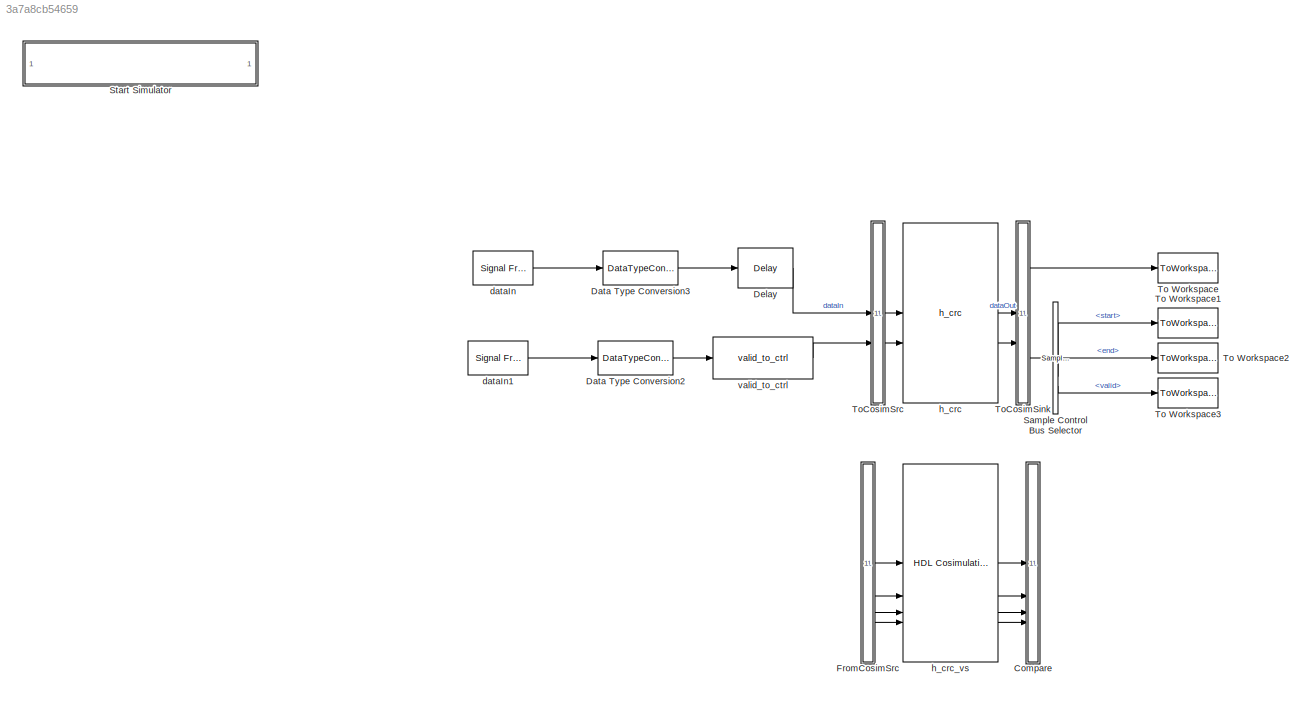
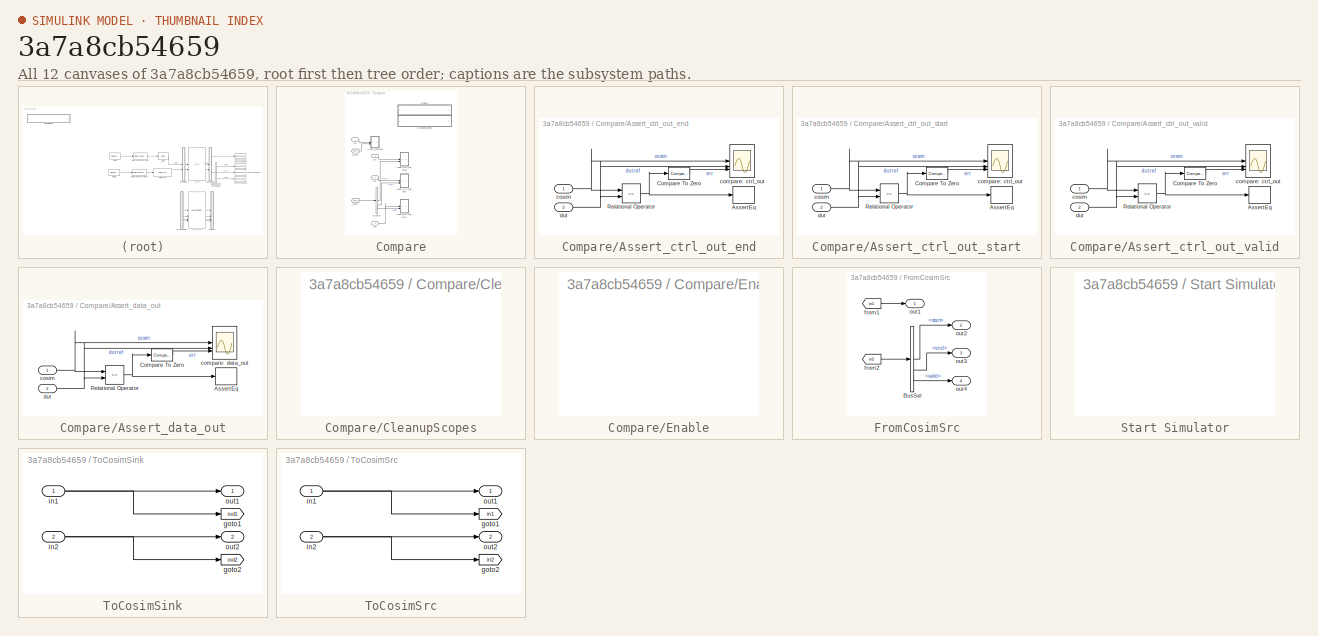
[diagram: thumbnail index - all 12 canvases of the model, root first then tree order]
MODEL slx_3a7a8cb54659
KIND model
CONFIG AbsTol = auto
CONFIG EnableMultiTasking = off
CONFIG FixedStep = auto
CONFIG MaxStep = auto
CONFIG MinStep = auto
CONFIG RelTol = 1e-3
CONFIG SampleTimeConstraint = Unconstrained
CONFIG SolverName = VariableStepAuto
CONFIG StartTime = 0.0
CONFIG StopTime = 10.0
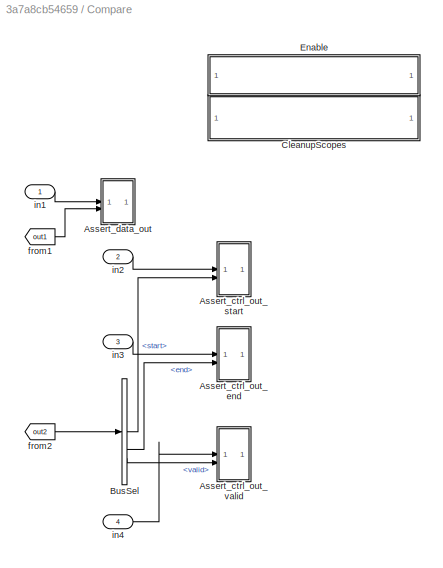
BLOCK [SubSystem] Compare
BLOCK [SubSystem] Compare/Assert_ctrl_out_end
  LibrarySourceBlock = hdlmdlgenlib/AssertEq
BLOCK [Assertion] Compare/Assert_ctrl_out_end/AssertEq
BLOCK [Reference] Compare/Assert_ctrl_out_end/Compare To Zero  REF=simulink/Logic and Bit
Operations/Compare
To Zero
  SourceBlock = simulink/Logic and Bit\nOperations/Compare\nTo Zero
  SourceType = Compare To Zero
BLOCK [RelationalOperator] Compare/Assert_ctrl_out_end/Relational Operator
  InputSameDT = off
  Operator = ==
  OutDataTypeStr = boolean
BLOCK [Scope] Compare/Assert_ctrl_out_end/compare: ctrl_out
  Floating = off
  NumInputPorts = 3
  ScopeSpecificationString = Simulink.scopes.TimeScopeBlockCfg('CurrentConfiguration', extmgr.ConfigurationSet(extmgr.Configuration('Core','General UI',true,'MessageLogAutoOpenMode','for warn/fail messages','ShowCloseAll',true,'ShowBringAllForward',true),extmgr.Configuration('Core','Source UI',true,'PlaybackToolbar',true),extmgr.Configuration('Sources','WiredSimulink',true,'PointsPerSignal',50000,'DataLoggingDecimation','1','...<+3578ch>
BLOCK [Inport] Compare/Assert_ctrl_out_end/cosim
BLOCK [Inport] Compare/Assert_ctrl_out_end/dut
  Port = 2
BLOCK [SubSystem] Compare/Assert_ctrl_out_start
  LibrarySourceBlock = hdlmdlgenlib/AssertEq
BLOCK [Assertion] Compare/Assert_ctrl_out_start/AssertEq
BLOCK [Reference] Compare/Assert_ctrl_out_start/Compare To Zero  REF=simulink/Logic and Bit
Operations/Compare
To Zero
  SourceBlock = simulink/Logic and Bit\nOperations/Compare\nTo Zero
  SourceType = Compare To Zero
BLOCK [RelationalOperator] Compare/Assert_ctrl_out_start/Relational Operator
  InputSameDT = off
  Operator = ==
  OutDataTypeStr = boolean
BLOCK [Scope] Compare/Assert_ctrl_out_start/compare: ctrl_out
  Floating = off
  NumInputPorts = 3
  ScopeSpecificationString = Simulink.scopes.TimeScopeBlockCfg('CurrentConfiguration', extmgr.ConfigurationSet(extmgr.Configuration('Core','General UI',true,'MessageLogAutoOpenMode','for warn/fail messages','ShowCloseAll',true,'ShowBringAllForward',true),extmgr.Configuration('Core','Source UI',true,'PlaybackToolbar',true),extmgr.Configuration('Sources','WiredSimulink',true,'PointsPerSignal',50000,'DataLoggingDecimation','1','...<+3577ch>  <repeated x3 — deduplicated; at blocks: compare: ctrl_out, compare: data_out>
BLOCK [Inport] Compare/Assert_ctrl_out_start/cosim
BLOCK [Inport] Compare/Assert_ctrl_out_start/dut
  Port = 2
BLOCK [SubSystem] Compare/Assert_ctrl_out_valid
  LibrarySourceBlock = hdlmdlgenlib/AssertEq
BLOCK [Assertion] Compare/Assert_ctrl_out_valid/AssertEq
BLOCK [Reference] Compare/Assert_ctrl_out_valid/Compare To Zero  REF=simulink/Logic and Bit
Operations/Compare
To Zero
  SourceBlock = simulink/Logic and Bit\nOperations/Compare\nTo Zero
  SourceType = Compare To Zero
BLOCK [RelationalOperator] Compare/Assert_ctrl_out_valid/Relational Operator
  InputSameDT = off
  Operator = ==
  OutDataTypeStr = boolean
BLOCK [Scope] Compare/Assert_ctrl_out_valid/compare: ctrl_out
  Floating = off
  NumInputPorts = 3
BLOCK [Inport] Compare/Assert_ctrl_out_valid/cosim
BLOCK [Inport] Compare/Assert_ctrl_out_valid/dut
  Port = 2
BLOCK [SubSystem] Compare/Assert_data_out
  LibrarySourceBlock = hdlmdlgenlib/AssertEq
BLOCK [Assertion] Compare/Assert_data_out/AssertEq
BLOCK [Reference] Compare/Assert_data_out/Compare To Zero  REF=simulink/Logic and Bit
Operations/Compare
To Zero
  SourceBlock = simulink/Logic and Bit\nOperations/Compare\nTo Zero
  SourceType = Compare To Zero
BLOCK [RelationalOperator] Compare/Assert_data_out/Relational Operator
  InputSameDT = off
  Operator = ==
  OutDataTypeStr = boolean
BLOCK [Scope] Compare/Assert_data_out/compare: data_out
  Floating = off
  NumInputPorts = 3
BLOCK [Inport] Compare/Assert_data_out/cosim
BLOCK [Inport] Compare/Assert_data_out/dut
  Port = 2
BLOCK [BusSelector] Compare/BusSel
  OutputSignals = start,end,valid
BLOCK [SubSystem] Compare/CleanupScopes
  OpenFcn = blkName = gcb; %self block\nidx = regexp(blkName, '/CleanupScopes$', 'once');\nblkParent = blkName(1:idx-1);\nblks=find_system(blkParent, 'LookUnderMasks', 'all','blocktype', 'Scope');\nfor itr = 1:length(blks)\n	 hScopeCfg = get_param(blks{itr},'ScopeConfiguration');\n	 hScopeCfg.Visible = ~ hScopeCfg.Visible;\nend\ndrawnow;
BLOCK [SubSystem] Compare/Enable
  OpenFcn = blkName = gcb;\nidx = regexp(blkName, '/Enable$', 'once');\nblkParent = blkName(1:idx-1);\nblks=find_system(blkParent, 'LookUnderMasks', 'all','blocktype', 'Assertion');\ne = get_param(blks{1}, 'Enabled');\nif strcmp(e, 'on'), f= 'off';, else, f = 'on';, end\nfor ii=1:length(blks), set_param(blks{ii}, 'Enabled', f);, end\nset_param(gcb, 'MaskDisplay',['fprintf(message(''hdlcoder:cosim:vnl_dblclick_assert...<+47ch>
BLOCK [From] Compare/from1
  GotoTag = out1
  TagVisibility = global
BLOCK [From] Compare/from2
  GotoTag = out2
  TagVisibility = global
BLOCK [Inport] Compare/in1
BLOCK [Inport] Compare/in2
  Port = 2
BLOCK [Inport] Compare/in3
  Port = 3
BLOCK [Inport] Compare/in4
  Port = 4
BLOCK [DataTypeConversion] Data Type Conversion2
  OutDataTypeStr = boolean
  RndMeth = Floor
  SaturateOnIntegerOverflow = off
BLOCK [DataTypeConversion] Data Type Conversion3
  OutDataTypeStr = boolean
  RndMeth = Floor
  SaturateOnIntegerOverflow = off
BLOCK [Delay] Delay
  DelayLength = 1
  InitialCondition = 0
  InputPortMap = u0
  UseCircularBuffer = on
  UserDataPersistent = on
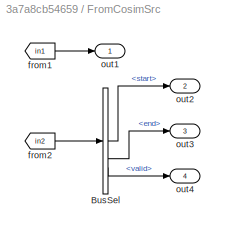
BLOCK [SubSystem] FromCosimSrc
BLOCK [BusSelector] FromCosimSrc/BusSel
  OutputSignals = start,end,valid
BLOCK [From] FromCosimSrc/from1
  GotoTag = in1
  TagVisibility = global
BLOCK [From] FromCosimSrc/from2
  GotoTag = in2
  TagVisibility = global
BLOCK [Outport] FromCosimSrc/out1
BLOCK [Outport] FromCosimSrc/out2
  Port = 2
BLOCK [Outport] FromCosimSrc/out3
  Port = 3
BLOCK [Outport] FromCosimSrc/out4
  Port = 4
BLOCK [Reference] Sample Control Bus Selector  REF=whdlutilities/Sample Control
Bus Selector
  SourceBlock = whdlutilities/Sample Control\nBus Selector
BLOCK [SubSystem] Start Simulator
  OpenFcn = cosimDirName = pwd;\ncd 'hdl_prj/hdlsrc/HDLHeaderCRC';\n[s,r] = system('vivado -mode batch -source gm_HDLHeaderCRC_vs.tcl','-echo');\ncd (cosimDirName);\nclear cosimDirName;\nif s\n   error('Failed to create Vivado HDL design DLL using script gm_HDLHeaderCRC_vs.tcl.');\nend
BLOCK [ToWorkspace] To Workspace
  MaxDataPoints = inf
  SampleTime = 1/fs
  Save2DSignal = 2-D array (concatenate along first dimension)
  VariableName = dataOut
BLOCK [ToWorkspace] To Workspace1
  MaxDataPoints = inf
  SampleTime = 1/fs
  Save2DSignal = 2-D array (concatenate along first dimension)
  VariableName = startOut
BLOCK [ToWorkspace] To Workspace2
  MaxDataPoints = inf
  SampleTime = 1/fs
  Save2DSignal = 2-D array (concatenate along first dimension)
  VariableName = endOut
BLOCK [ToWorkspace] To Workspace3
  MaxDataPoints = inf
  SampleTime = 1/fs
  Save2DSignal = 2-D array (concatenate along first dimension)
  VariableName = validOut
BLOCK [SubSystem] ToCosimSink
BLOCK [Goto] ToCosimSink/goto1
  GotoTag = out1
  TagVisibility = global
BLOCK [Goto] ToCosimSink/goto2
  GotoTag = out2
  TagVisibility = global
BLOCK [Inport] ToCosimSink/in1
BLOCK [Inport] ToCosimSink/in2
  Port = 2
BLOCK [Outport] ToCosimSink/out1
BLOCK [Outport] ToCosimSink/out2
  Port = 2
BLOCK [SubSystem] ToCosimSrc
BLOCK [Goto] ToCosimSrc/goto1
  GotoTag = in1
  TagVisibility = global
BLOCK [Goto] ToCosimSrc/goto2
  GotoTag = in2
  TagVisibility = global
BLOCK [Inport] ToCosimSrc/in1
BLOCK [Inport] ToCosimSrc/in2
  Port = 2
BLOCK [Outport] ToCosimSrc/out1
BLOCK [Outport] ToCosimSrc/out2
  Port = 2
BLOCK [Reference] dataIn  REF=dspsrcs4/Signal From
Workspace
  SourceBlock = dspsrcs4/Signal From\nWorkspace
  SourceType = Signal From Workspace
BLOCK [Reference] dataIn1  REF=dspsrcs4/Signal From
Workspace
  SourceBlock = dspsrcs4/Signal From\nWorkspace
  SourceType = Signal From Workspace
BLOCK [Reference] h_crc  REF=HDL_ieee_8021513/h_crc
  SourceBlock = HDL_ieee_8021513/h_crc
  SourceProductName = HDL IEEE 8021513
  SourceType = SubSystem
BLOCK [Reference] h_crc_vs  REF=vivadosimlib/HDL Cosimulation
  SourceBlock = vivadosimlib/HDL Cosimulation
  SourceType = Simulink and Vivado Simulator Cosimulation
  UserDataPersistent = on
BLOCK [Reference] valid_to_ctrl  REF=HDL_ieee_8021513/valid_to_ctrl
  SourceBlock = HDL_ieee_8021513/valid_to_ctrl
  SourceProductName = HDL IEEE 8021513
  SourceType = SubSystem
LINE Compare/Assert_ctrl_out_end/Compare To Zero:1 -> Compare/Assert_ctrl_out_end/compare: ctrl_out:3
NET Compare/Assert_ctrl_out_end/Relational Operator:1 -> Compare/Assert_ctrl_out_end/AssertEq:1, Compare/Assert_ctrl_out_end/Compare To Zero:1
NET Compare/Assert_ctrl_out_end/cosim:1 -> Compare/Assert_ctrl_out_end/Relational Operator:1, Compare/Assert_ctrl_out_end/compare: ctrl_out:1
NET Compare/Assert_ctrl_out_end/dut:1 -> Compare/Assert_ctrl_out_end/Relational Operator:2, Compare/Assert_ctrl_out_end/compare: ctrl_out:2
LINE Compare/Assert_ctrl_out_start/Compare To Zero:1 -> Compare/Assert_ctrl_out_start/compare: ctrl_out:3
NET Compare/Assert_ctrl_out_start/Relational Operator:1 -> Compare/Assert_ctrl_out_start/AssertEq:1, Compare/Assert_ctrl_out_start/Compare To Zero:1
NET Compare/Assert_ctrl_out_start/cosim:1 -> Compare/Assert_ctrl_out_start/Relational Operator:1, Compare/Assert_ctrl_out_start/compare: ctrl_out:1
NET Compare/Assert_ctrl_out_start/dut:1 -> Compare/Assert_ctrl_out_start/Relational Operator:2, Compare/Assert_ctrl_out_start/compare: ctrl_out:2
LINE Compare/Assert_ctrl_out_valid/Compare To Zero:1 -> Compare/Assert_ctrl_out_valid/compare: ctrl_out:3
NET Compare/Assert_ctrl_out_valid/Relational Operator:1 -> Compare/Assert_ctrl_out_valid/AssertEq:1, Compare/Assert_ctrl_out_valid/Compare To Zero:1
NET Compare/Assert_ctrl_out_valid/cosim:1 -> Compare/Assert_ctrl_out_valid/Relational Operator:1, Compare/Assert_ctrl_out_valid/compare: ctrl_out:1
NET Compare/Assert_ctrl_out_valid/dut:1 -> Compare/Assert_ctrl_out_valid/Relational Operator:2, Compare/Assert_ctrl_out_valid/compare: ctrl_out:2
LINE Compare/Assert_data_out/Compare To Zero:1 -> Compare/Assert_data_out/compare: data_out:3
NET Compare/Assert_data_out/Relational Operator:1 -> Compare/Assert_data_out/AssertEq:1, Compare/Assert_data_out/Compare To Zero:1
NET Compare/Assert_data_out/cosim:1 -> Compare/Assert_data_out/Relational Operator:1, Compare/Assert_data_out/compare: data_out:1
NET Compare/Assert_data_out/dut:1 -> Compare/Assert_data_out/Relational Operator:2, Compare/Assert_data_out/compare: data_out:2
LINE Compare/BusSel:1 -> Compare/Assert_ctrl_out_start:2
LINE Compare/BusSel:2 -> Compare/Assert_ctrl_out_end:2
LINE Compare/BusSel:3 -> Compare/Assert_ctrl_out_valid:2
LINE Compare/from1:1 -> Compare/Assert_data_out:2
LINE Compare/from2:1 -> Compare/BusSel:1
LINE Compare/in1:1 -> Compare/Assert_data_out:1
LINE Compare/in2:1 -> Compare/Assert_ctrl_out_start:1
LINE Compare/in3:1 -> Compare/Assert_ctrl_out_end:1
LINE Compare/in4:1 -> Compare/Assert_ctrl_out_valid:1
LINE Data Type Conversion2:1 -> valid_to_ctrl:1
LINE Data Type Conversion3:1 -> Delay:1
LINE Delay:1 -> ToCosimSrc:1
LINE FromCosimSrc/BusSel:1 -> FromCosimSrc/out2:1
LINE FromCosimSrc/BusSel:2 -> FromCosimSrc/out3:1
LINE FromCosimSrc/BusSel:3 -> FromCosimSrc/out4:1
LINE FromCosimSrc/from1:1 -> FromCosimSrc/out1:1
LINE FromCosimSrc/from2:1 -> FromCosimSrc/BusSel:1
LINE FromCosimSrc:1 -> h_crc_vs:1
LINE FromCosimSrc:2 -> h_crc_vs:2
LINE FromCosimSrc:3 -> h_crc_vs:3
LINE FromCosimSrc:4 -> h_crc_vs:4
LINE Sample Control Bus Selector:1 -> To Workspace1:1
LINE Sample Control Bus Selector:2 -> To Workspace2:1
LINE Sample Control Bus Selector:3 -> To Workspace3:1
NET ToCosimSink/in1:1 -> ToCosimSink/goto1:1, ToCosimSink/out1:1
NET ToCosimSink/in2:1 -> ToCosimSink/goto2:1, ToCosimSink/out2:1
LINE ToCosimSink:1 -> To Workspace:1
LINE ToCosimSink:2 -> Sample Control Bus Selector:1
NET ToCosimSrc/in1:1 -> ToCosimSrc/goto1:1, ToCosimSrc/out1:1
NET ToCosimSrc/in2:1 -> ToCosimSrc/goto2:1, ToCosimSrc/out2:1
LINE ToCosimSrc:1 -> h_crc:1
LINE ToCosimSrc:2 -> h_crc:2
LINE dataIn1:1 -> Data Type Conversion2:1
LINE dataIn:1 -> Data Type Conversion3:1
LINE h_crc:1 -> ToCosimSink:1
LINE h_crc:2 -> ToCosimSink:2
LINE h_crc_vs:1 -> Compare:1
LINE h_crc_vs:2 -> Compare:2
LINE h_crc_vs:3 -> Compare:3
LINE h_crc_vs:4 -> Compare:4
LINE valid_to_ctrl:1 -> ToCosimSrc:2
note: NET lines group one-source signal fan-out (src -> all destinations, sorted); 1:1 wires keep LINE
